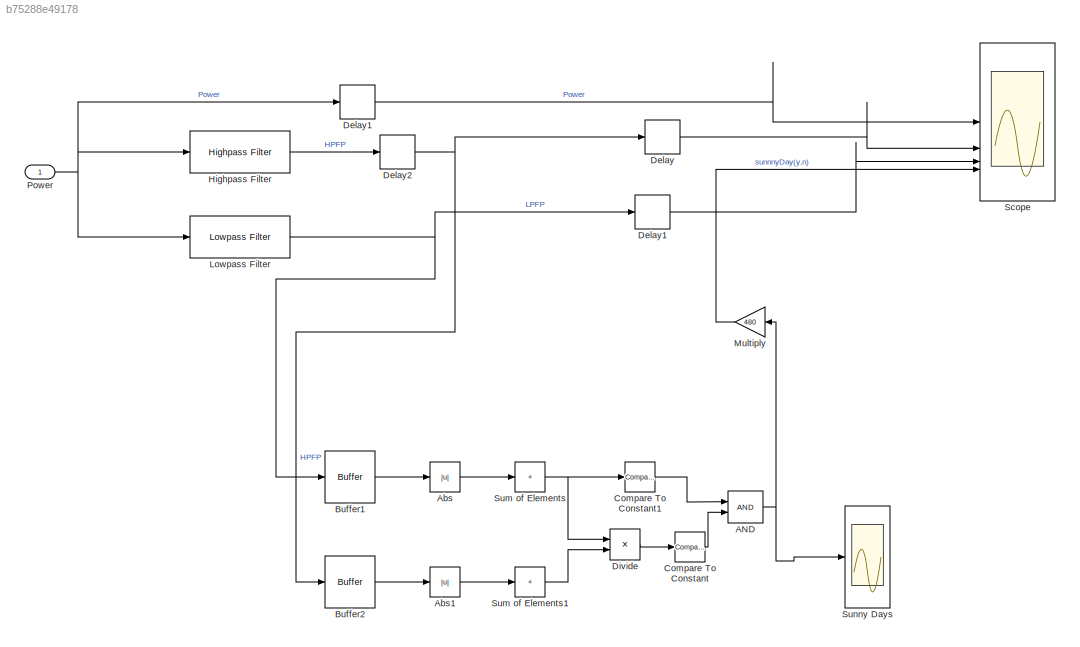
MODEL slx_b75288e49178
KIND model
CONFIG AbsTol = auto
CONFIG EnableMultiTasking = off
CONFIG FixedStep = auto
CONFIG MaxStep = auto
CONFIG MinStep = auto
CONFIG RelTol = 1e-3
CONFIG SampleTimeConstraint = Unconstrained
CONFIG SolverName = VariableStepAuto
CONFIG StartTime = 0.0
CONFIG StopTime = 958
BLOCK [Logic] AND 
  AllPortsSameDT = off
  IconShape = distinctive
  OutDataTypeStr = boolean
BLOCK [Abs] Abs
  SaturateOnIntegerOverflow = off
BLOCK [Abs] Abs1
  SaturateOnIntegerOverflow = off
BLOCK [Buffer] Buffer1 
  N = 24
  OutputFrames = off
BLOCK [Buffer] Buffer2 
  N = 24
  OutputFrames = off
BLOCK [Reference] Compare To Constant  REF=simulink/Logic and Bit
Operations/Compare
To Constant
  SourceBlock = simulink/Logic and Bit\nOperations/Compare\nTo Constant
  SourceType = Compare To Constant
BLOCK [Reference] Compare To Constant1  REF=simulink/Logic and Bit
Operations/Compare
To Constant
  SourceBlock = simulink/Logic and Bit\nOperations/Compare\nTo Constant
  SourceType = Compare To Constant
BLOCK [Delay] Delay
  DelayLength = 16
  InputPortMap = u0
BLOCK [Delay] Delay1
  DelayLength = 15
  InputPortMap = u0
BLOCK [Delay] Delay1 
  DelayLength = 18
  InputPortMap = u0
BLOCK [Delay] Delay2 
  InputPortMap = u0
BLOCK [Product] Divide
  Inputs = */
BLOCK [Reference] Highpass Filter  REF=dspfdesign/Highpass Filter
  SourceBlock = dspfdesign/Highpass Filter
  SourceType = dsp.simulink.HighpassFilter
BLOCK [Reference] Lowpass Filter  REF=dspfdesign/Lowpass Filter
  SourceBlock = dspfdesign/Lowpass Filter
  SourceType = dsp.simulink.LowpassFilter
BLOCK [Gain] Multiply
  Gain = 480
BLOCK [Inport] Power 
  SampleTime = 1/Fs
BLOCK [Scope] Scope 
  Floating = off
  NumInputPorts = 4
  ScopeSpecificationString = Simulink.scopes.TimeScopeBlockCfg('CurrentConfiguration', extmgr.ConfigurationSet(extmgr.Configuration('Core','General UI',true,'FigureColor',[0 0 0]),extmgr.Configuration('Core','Source UI',true),extmgr.Configuration('Sources','WiredSimulink',true),extmgr.Configuration('Visuals','Time Domain',true,'PlotType','Line','SerializedDisplays',{struct('MinYLimReal','-185.40011','MaxYLimReal','517.19977',...<+1980ch>
BLOCK [Sum] Sum of Elements
  IconShape = rectangular
  Inputs = +
BLOCK [Sum] Sum of Elements1
  IconShape = rectangular
  Inputs = +
BLOCK [Scope] Sunny Days
  Floating = off
  NumInputPorts = 1
  ScopeSpecificationString = Simulink.scopes.TimeScopeBlockCfg('CurrentConfiguration', extmgr.ConfigurationSet(extmgr.Configuration('Core','General UI',true),extmgr.Configuration('Core','Source UI',true),extmgr.Configuration('Sources','WiredSimulink',true,'DataLoggingVariableName','ScopeData1'),extmgr.Configuration('Visuals','Time Domain',true,'SerializedDisplays',{struct('MinYLimReal','-0.125','MaxYLimReal','1.125','YLabelRe...<+1513ch>
NET AND :1 -> Multiply:1, Sunny Days:1
LINE Abs1:1 -> Sum of Elements1:1
LINE Abs:1 -> Sum of Elements:1
LINE Buffer1 :1 -> Abs:1
LINE Buffer2 :1 -> Abs1:1
LINE Compare To Constant1:1 -> AND :1
LINE Compare To Constant:1 -> AND :2
LINE Delay1 :1 -> Scope :1
LINE Delay1:1 -> Scope :3
NET Delay2 :1 -> Buffer2 :1, Delay:1
LINE Delay:1 -> Scope :2
LINE Divide:1 -> Compare To Constant:1
LINE Highpass Filter:1 -> Delay2 :1
NET Lowpass Filter:1 -> Buffer1 :1, Delay1:1
LINE Multiply:1 -> Scope :4
NET Power :1 -> Delay1 :1, Highpass Filter:1, Lowpass Filter:1
LINE Sum of Elements1:1 -> Divide:2
NET Sum of Elements:1 -> Compare To Constant1:1, Divide:1
note: NET lines group one-source signal fan-out (src -> all destinations, sorted); 1:1 wires keep LINE
